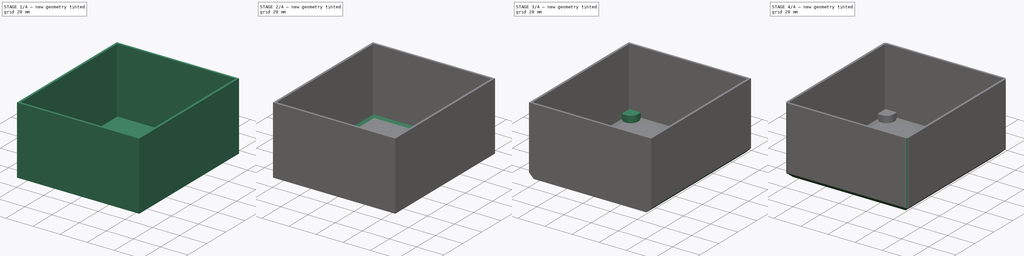
[diagram: build sequence overview — one tinted view per stage of 4, left to right]
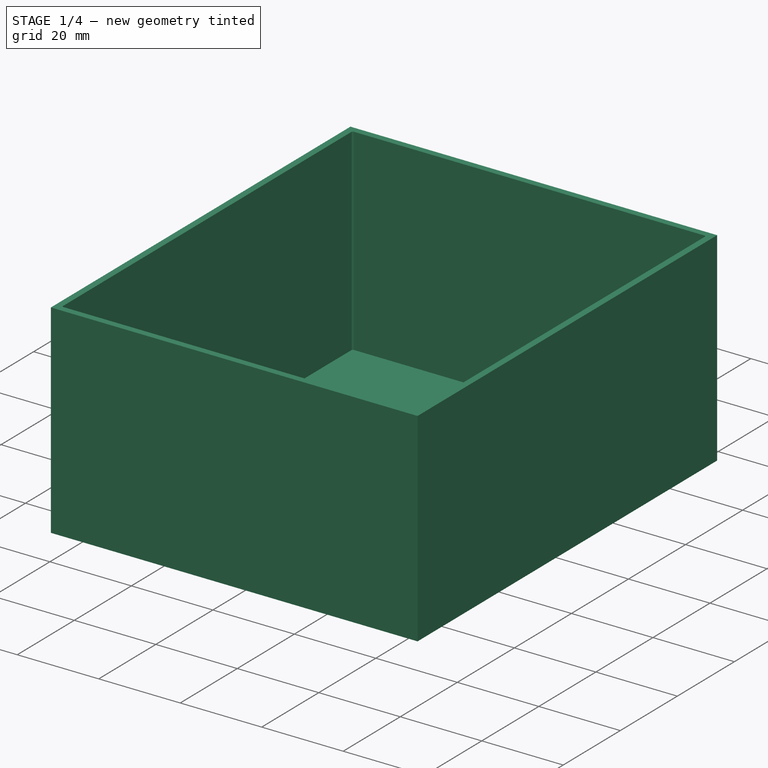
[diagram: stage 1 of 4 — iso view after this stage's code; geometry added in this stage tinted green]
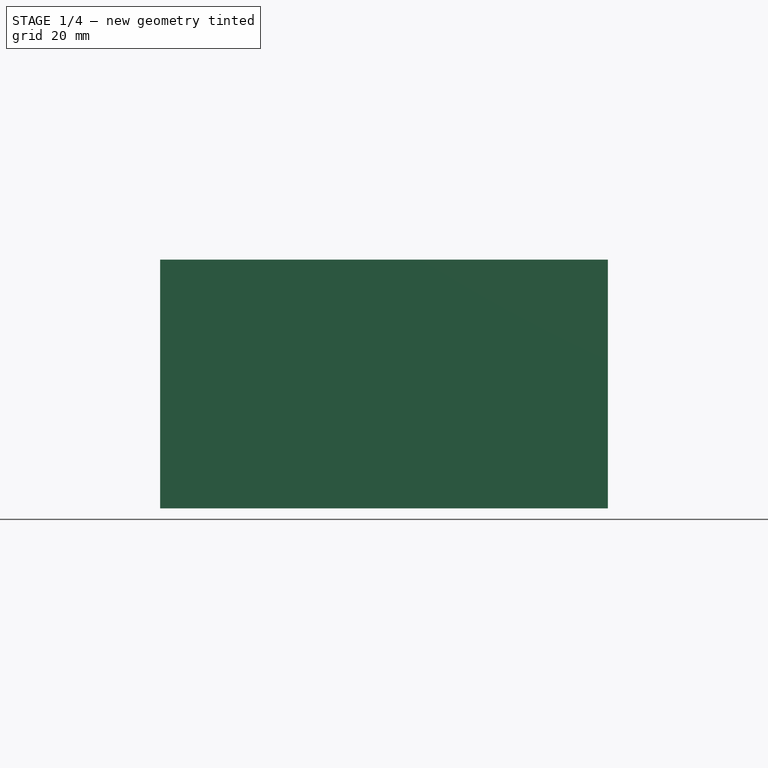
[diagram: stage 1 of 4 — front view after this stage's code; geometry added in this stage tinted green]
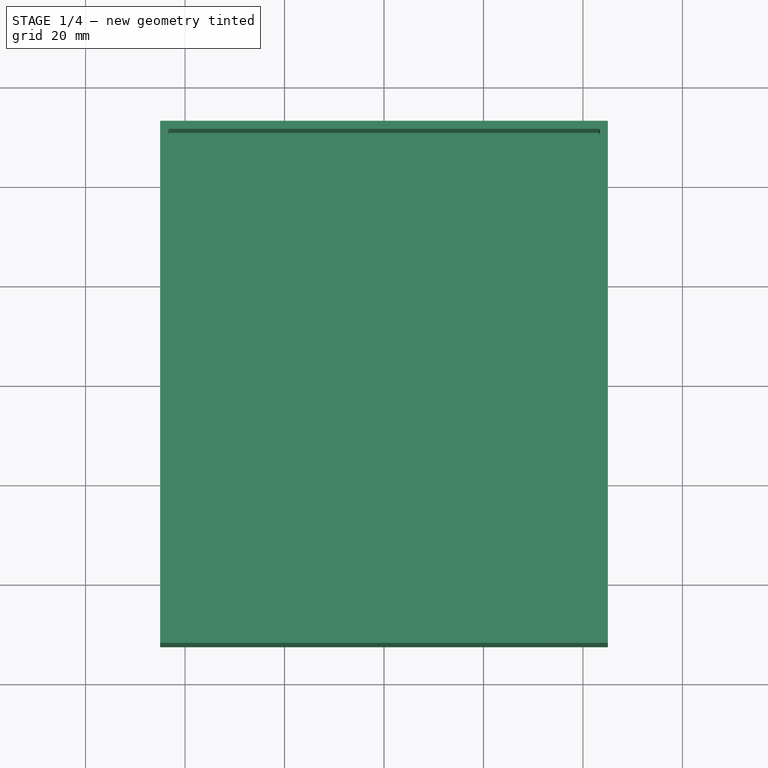
[diagram: stage 1 of 4 — top view after this stage's code; geometry added in this stage tinted green]
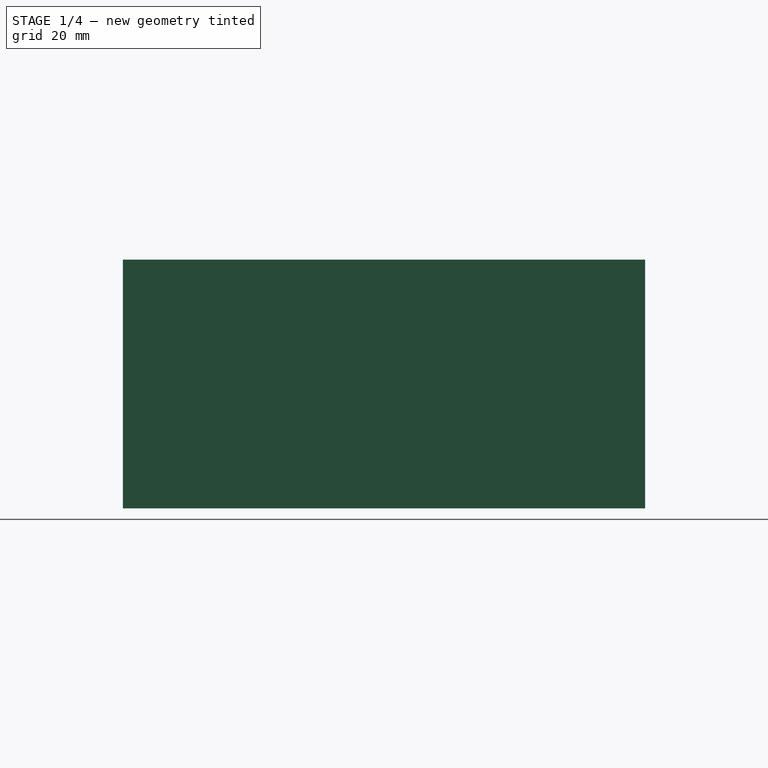
[diagram: stage 1 of 4 — right view after this stage's code; geometry added in this stage tinted green]
FCSTD DOCUMENT  (FreeCAD 0.21R33771 (Git))
Label: parametric_tray
License: All rights reserved
LicenseURL: http://en.wikipedia.org/wiki/All_rights_reserved
objects: Sketcher::SketchObject×9, PartDesign::Pocket×5, PartDesign::Pad×4, PartDesign::Plane×3, Spreadsheet::Sheet×1, PartDesign::Body×1
note: 31 computed .brp shape members not serialized (recipe doc carries the construction recipe); baked Part::Feature solids carry a one-line shape summary decoded from their .brp

FEATURE [Spreadsheet::Sheet] Spreadsheet  label="settings"
  cells = A1='Tray outer dimensions; C1='Fillets; E1='Chamfer stuff; G1='Hole stuff; A2='Tray width; B2(tray_body_width)=90; C2='outer fillet; D2(tray_outer_fillet)=2; E2='bottom chamfer; F2(bottom_chamfer)=5; G2='Hole diameter; H2(hole_diameter)=2; A3='Tray Depth; B3(tray_body_depth)=105; G3='Hole spacing; H3(hole_spacing)=5; A4='Tray height; B4(tray_body_height)=50; G4='Hole depth; H4(hole_depth)=5; A5='Tray wall thickness; B5(tray_wall_thickness)=1.6; A8='Calculations; A9='Tray inner width; B9(tray_pocket_width)==tray_body_width - tray_wall_thickness * 2; C9='inner fillet; D9(inner_fillet)==abs(tray_wall_thickness - tray_outer_fillet); E9='inner chamfer; F9(pocket_bottom_chamfer)==bottom_chamfer + tray_wall_thickness; G9='Hole width space; H9(hole_width_spacing)==tray_body_width - hole_spacing * 2; A10='Tray inner depth; B10(tray_pocket_depth)==tray_body_depth - tray_wall_thickness * 2; G10='hole depth space; H10(hole_depth_spacing)==tray_body_depth - hole_spacing * 2; A11='tray inner height; B11(tray_pocket_height)==tray_body_height - tray_wall_thickness; G11='hole post height; H11(hole_post_height)==hole_depth + tray_wall_thickness; A13='Front plane Z; B13(front_plane_z)==tray_body_depth / 2; A14='Right plane Z; B14(right_plane_z)==tray_body_width / 2; A15='Top plane Z; B15(top_plane_z)==tray_body_height
FEATURE [PartDesign::Plane] DatumPlane  label="tray_front"
  AttachmentOffset = pos=(0,0,52.5) rot=(0,0,1;0rad)
  Length = 106.432
  MapMode = 5
  Placement = pos=(0,-52.5,-1.17e-14) rot=(1,0,0;1.5708rad)
  ResizeMode = 0
  Support = -> [XZ_Plane]
  Width = 91.4317
  expr: .AttachmentOffset.Base.z = Spreadsheet.front_plane_z
FEATURE [PartDesign::Plane] DatumPlane001  label="tray_right"
  AttachmentOffset = pos=(0,0,45) rot=(0,0,1;0rad)
  Length = 122.748
  MapMode = 5
  Placement = pos=(45,-1e-14,1e-14) rot=(0.57735,0.57735,0.57735;2.0944rad)
  ResizeMode = 0
  Support = -> [YZ_Plane]
  Width = 92.7482
  expr: .AttachmentOffset.Base.z = Spreadsheet.right_plane_z
FEATURE [PartDesign::Plane] DatumPlane002  label="tray_top"
  AttachmentOffset = pos=(0,0,50) rot=(0,0,1;0rad)
  Length = 109.442
  MapMode = 5
  Placement = pos=(0,0,50) rot=(0,0,1;0rad)
  ResizeMode = 0
  Support = -> [XY_Plane]
  Width = 124.442
  expr: .AttachmentOffset.Base.z = Spreadsheet.tray_body_height
FEATURE [Sketcher::SketchObject] Sketch
  FullyConstrained = true
  MapMode = 5
  Support = -> [XY_Plane]
  expr: Constraints[10] = Spreadsheet.tray_body_depth
  expr: Constraints[9] = Spreadsheet.tray_body_width
  sketch-geometry (4):
    g0: LineSegment StartX=-45 StartY=52.5 StartZ=0 EndX=45 EndY=52.5 EndZ=0
    g1: LineSegment StartX=45 StartY=52.5 StartZ=0 EndX=45 EndY=-52.5 EndZ=0
    g2: LineSegment StartX=45 StartY=-52.5 StartZ=0 EndX=-45 EndY=-52.5 EndZ=0
    g3: LineSegment StartX=-45 StartY=-52.5 StartZ=0 EndX=-45 EndY=52.5 EndZ=0
  constraints (11):
    c: Coincident(g0,g1)
    c: Coincident(g1,g2)
    c: Coincident(g2,g3)
    c: Coincident(g3,g0)
    c: Horizontal(g0)
    c: Horizontal(g2)
    c: Vertical(g1)
    c: Vertical(g3)
    c: Symmetric(g0,g2,g-1)
    c: Distance(g0) = 90
    c: Distance(g3) = 105
FEATURE [PartDesign::Pad] Pad  label="tray_body"
  Direction = (0,0,1)
  Length = 50
  Length2 = 10
  Profile = -> Sketch
  ReferenceAxis = -> Sketch [N_Axis]
  Type = 0
  expr: Length = Spreadsheet.tray_body_height
FEATURE [Sketcher::SketchObject] Sketch001
  FullyConstrained = true
  MapMode = 5
  Placement = pos=(0,0,50) rot=(0,0,1;0rad)
  Support = -> [DatumPlane002]
  expr: Constraints[10] = <<settings>>.tray_pocket_width
  expr: Constraints[23] = <<settings>>.inner_fillet
  expr: Constraints[24] = <<settings>>.inner_fillet
  expr: Constraints[9] = <<settings>>.tray_pocket_depth
  sketch-geometry (12):
    g0: LineSegment StartX=-43.4 StartY=50.9 StartZ=0 EndX=43.4 EndY=50.9 EndZ=0
    g1: LineSegment StartX=43.4 StartY=50.9 StartZ=0 EndX=43.4 EndY=-50.9 EndZ=0
    g2: LineSegment StartX=43.4 StartY=-50.9 StartZ=0 EndX=-43.4 EndY=-50.9 EndZ=0
    g3: LineSegment StartX=-43.4 StartY=-50.9 StartZ=0 EndX=-43.4 EndY=50.9 EndZ=0
    g4: LineSegment StartX=-43 StartY=50.9 StartZ=0 EndX=43 EndY=50.9 EndZ=0
    g5: LineSegment StartX=43.4 StartY=50.5 StartZ=0 EndX=43.4 EndY=-50.5 EndZ=0
    g6: LineSegment StartX=43 StartY=-50.9 StartZ=0 EndX=-43 EndY=-50.9 EndZ=0
    g7: LineSegment StartX=-43.4 StartY=-50.5 StartZ=0 EndX=-43.4 EndY=50.5 EndZ=0
    g8: ArcOfCircle CenterX=-43 CenterY=-50.5 CenterZ=0 NormalX=0 NormalY=0 NormalZ=1 AngleXU=0 Radius=0.4 StartAngle=3.14159 EndAngle=4.71239
    g9: ArcOfCircle CenterX=43 CenterY=-50.5 CenterZ=0 NormalX=0 NormalY=0 NormalZ=1 AngleXU=0 Radius=0.4 StartAngle=4.71239 EndAngle=6.28319
    g10: ArcOfCircle CenterX=43 CenterY=50.5 CenterZ=0 NormalX=0 NormalY=0 NormalZ=1 AngleXU=0 Radius=0.4 StartAngle=0 EndAngle=1.5708
    g11: ArcOfCircle CenterX=-43 CenterY=50.5 CenterZ=0 NormalX=0 NormalY=0 NormalZ=1 AngleXU=0 Radius=0.4 StartAngle=1.5708 EndAngle=3.14159
  constraints (39):
    c: Coincident(g0,g1)
    c: Coincident(g1,g2)
    c: Coincident(g2,g3)
    c: Coincident(g3,g0)
    c: Horizontal(g0)
    c: Horizontal(g2)
    c: Vertical(g1)
    c: Vertical(g3)
    c: Symmetric(g0,g2,g-1)
    c: Distance(g1) = 101.8
    c: Distance(g0) = 86.8
    c: Horizontal(g11,g11)
    c: Horizontal(g11,g10)
    c: Horizontal(g10,g10)
    c: Vertical(g11,g11)
    c: Vertical(g11,g8)
    c: Vertical(g8,g8)
    c: Horizontal(g8,g8)
    c: Horizontal(g8,g9)
    c: Horizontal(g9,g9)
    c: Vertical(g9,g9)
    c: Vertical(g9,g10)
    c: Vertical(g10,g10)
    c: Distance(g8,g8) = 0.4
    c: Distance(g10,g10) = 0.4
    c: PointOnObject(g8,g3)
    c: PointOnObject(g8,g2)
    c: PointOnObject(g10,g0)
    c: PointOnObject(g10,g1)
    c: PointOnObject(g9,g1)
    c: PointOnObject(g11,g3)
    c: Coincident(g11,g4)
    c: Coincident(g4,g10)
    c: Coincident(g10,g5)
    c: Coincident(g5,g9)
    c: Coincident(g9,g6)
    c: Coincident(g6,g8)
    c: Coincident(g7,g8)
    c: Coincident(g7,g11)
FEATURE [PartDesign::Pocket] Pocket  label="tray_pocket"
  BaseFeature = -> Pad
  Direction = (0,0,-1)
  Length = 48.4
  Length2 = 5
  Profile = -> Sketch001
  ReferenceAxis = -> Sketch001 [N_Axis]
  Type = 0
  expr: Length = <<settings>>.tray_pocket_height
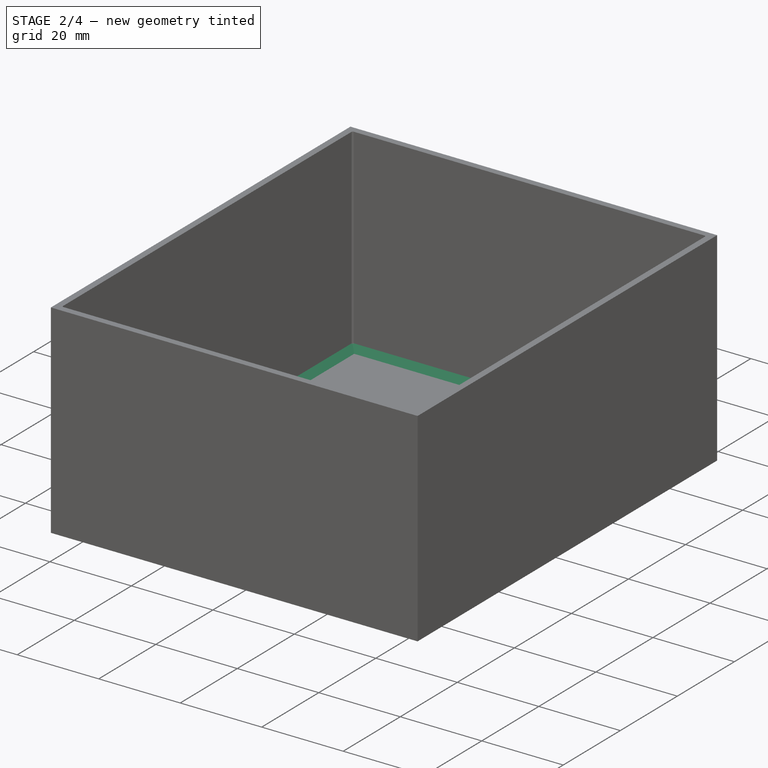
[diagram: stage 2 of 4 — iso view after this stage's code; geometry added in this stage tinted green]
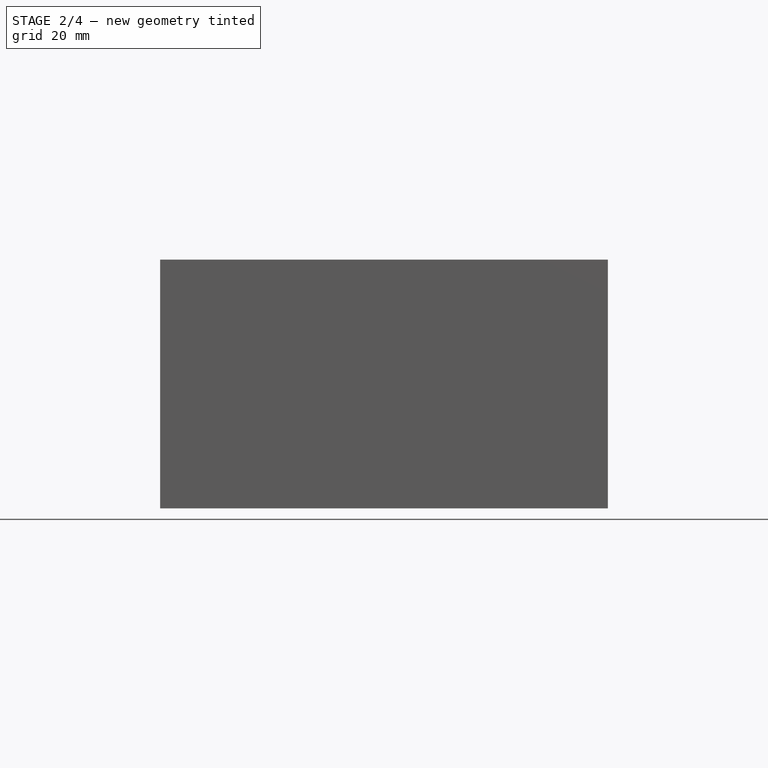
[diagram: stage 2 of 4 — front view after this stage's code; geometry added in this stage tinted green]
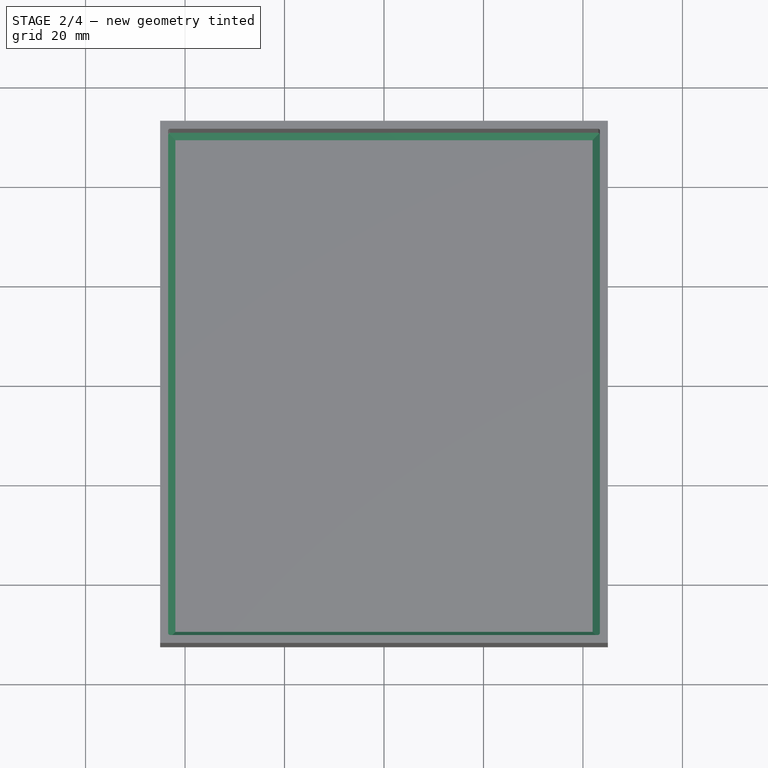
[diagram: stage 2 of 4 — top view after this stage's code; geometry added in this stage tinted green]
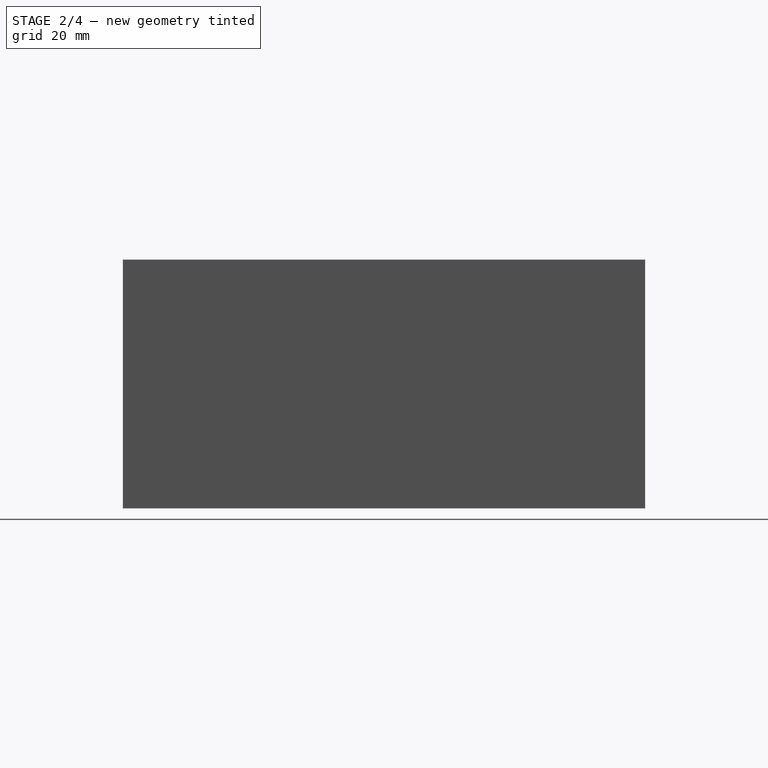
[diagram: stage 2 of 4 — right view after this stage's code; geometry added in this stage tinted green]
FEATURE [Sketcher::SketchObject] Sketch002
  FullyConstrained = true
  MapMode = 5
  Placement = pos=(0,-52.5,-1.17e-14) rot=(1,0,0;1.5708rad)
  Support = -> [DatumPlane]
  expr: Constraints[17] = <<settings>>.pocket_bottom_chamfer
  expr: Constraints[9] = <<settings>>.tray_body_width
  sketch-geometry (10):
    g0: LineSegment StartX=-45 StartY=4.6669 StartZ=0 EndX=45 EndY=4.6669 EndZ=0
    g1: LineSegment StartX=45 StartY=4.6669 StartZ=0 EndX=45 EndY=0 EndZ=0
    g2: LineSegment StartX=45 StartY=0 StartZ=0 EndX=-45 EndY=0 EndZ=0
    g3: LineSegment StartX=-45 StartY=0 StartZ=0 EndX=-45 EndY=4.6669 EndZ=0
    g4: LineSegment StartX=-45 StartY=4.6669 StartZ=0 EndX=-40.3331 EndY=0 EndZ=0
    g5: LineSegment StartX=-40.3331 StartY=0 StartZ=0 EndX=-45 EndY=0 EndZ=0
    g6: LineSegment StartX=-45 StartY=4.6669 StartZ=0 EndX=-45 EndY=0 EndZ=0
    g7: LineSegment StartX=40.3331 StartY=0 StartZ=0 EndX=45 EndY=0 EndZ=0
    g8: LineSegment StartX=45 StartY=0 StartZ=0 EndX=45 EndY=4.6669 EndZ=0
    g9: LineSegment StartX=45 StartY=4.6669 StartZ=0 EndX=40.3331 EndY=0 EndZ=0
  constraints (25):
    c: Coincident(g0,g1)
    c: Coincident(g1,g2)
    c: Coincident(g2,g3)
    c: Coincident(g3,g0)
    c: Horizontal(g0)
    c: Horizontal(g2)
    c: Symmetric(g2,g1,g-1)
    c: Angle(g2,g3) = 1.5708
    c: Angle(g1,g2) = 1.5708
    c: Distance(g2) = 90
    c: Coincident(g6,g2)
    c: Coincident(g5,g6)
    c: Coincident(g6,g0)
    c: PointOnObject(g5,g2)
    c: Coincident(g4,g5)
    c: Coincident(g4,g6)
    c: Equal(g9,g4)
    c: Distance(g4) = 6.6
    c: Coincident(g7,g1)
    c: Coincident(g8,g7)
    c: Coincident(g8,g0)
    c: PointOnObject(g7,g2)
    c: Coincident(g9,g8)
    c: Coincident(g9,g7)
    c: Equal(g7,g8)
FEATURE [PartDesign::Pad] Pad001  label="front_bottom_chamfer_body"
  BaseFeature = -> Pocket
  Direction = (0,-1,-2e-16)
  Length = 105
  Length2 = 10
  Profile = -> Sketch002
  ReferenceAxis = -> Sketch002 [N_Axis]
  Reversed = true
  Type = 0
  expr: Length = <<settings>>.tray_body_depth
FEATURE [Sketcher::SketchObject] Sketch003
  FullyConstrained = true
  MapMode = 5
  Placement = pos=(45,-1e-14,1e-14) rot=(0.57735,0.57735,0.57735;2.0944rad)
  Support = -> [DatumPlane001]
  expr: Constraints[23] = <<settings>>.pocket_bottom_chamfer
  expr: Constraints[7] = <<settings>>.tray_body_depth
  sketch-geometry (10):
    g0: LineSegment StartX=-52.5 StartY=4.6669 StartZ=0 EndX=52.5 EndY=4.6669 EndZ=0
    g1: LineSegment StartX=52.5 StartY=4.6669 StartZ=0 EndX=52.5 EndY=0 EndZ=0
    g2: LineSegment StartX=52.5 StartY=0 StartZ=0 EndX=-52.5 EndY=0 EndZ=0
    g3: LineSegment StartX=-52.5 StartY=0 StartZ=0 EndX=-52.5 EndY=4.6669 EndZ=0
    g4: LineSegment StartX=-52.5 StartY=4.6669 StartZ=0 EndX=-52.5 EndY=0 EndZ=0
    g5: LineSegment StartX=-52.5 StartY=0 StartZ=0 EndX=-47.8331 EndY=0 EndZ=0
    g6: LineSegment StartX=-47.8331 StartY=0 StartZ=0 EndX=-52.5 EndY=4.6669 EndZ=0
    g7: LineSegment StartX=47.8331 StartY=0 StartZ=0 EndX=52.5 EndY=0 EndZ=0
    g8: LineSegment StartX=52.5 StartY=0 StartZ=0 EndX=52.5 EndY=4.6669 EndZ=0
    g9: LineSegment StartX=52.5 StartY=4.6669 StartZ=0 EndX=47.8331 EndY=0 EndZ=0
  constraints (25):
    c: Coincident(g0,g1)
    c: Coincident(g1,g2)
    c: Coincident(g2,g3)
    c: Coincident(g3,g0)
    c: Horizontal(g0)
    c: Horizontal(g2)
    c: Symmetric(g1,g2,g-1)
    c: Distance(g2) = 105
    c: Coincident(g5,g2)
    c: Coincident(g4,g5)
    c: Angle(g2,g3) = 1.5708
    c: Angle(g1,g2) = 1.5708
    c: Coincident(g4,g0)
    c: Coincident(g6,g5)
    c: Coincident(g6,g4)
    c: Coincident(g7,g1)
    c: Coincident(g8,g7)
    c: Coincident(g8,g0)
    c: Coincident(g8,g9)
    c: Coincident(g9,g7)
    c: Equal(g5,g4)
    c: Equal(g6,g9)
    c: PointOnObject(g7,g2)
    c: Distance(g6) = 6.6
    c: PointOnObject(g5,g2)
FEATURE [PartDesign::Pad] Pad002  label="right_bottom_chamfer_body"
  BaseFeature = -> Pad001
  Direction = (1,-1e-16,1e-16)
  Length = 90
  Length2 = 10
  Profile = -> Sketch003
  ReferenceAxis = -> Sketch003 [N_Axis]
  Reversed = true
  Type = 0
  expr: Length = <<settings>>.tray_body_width
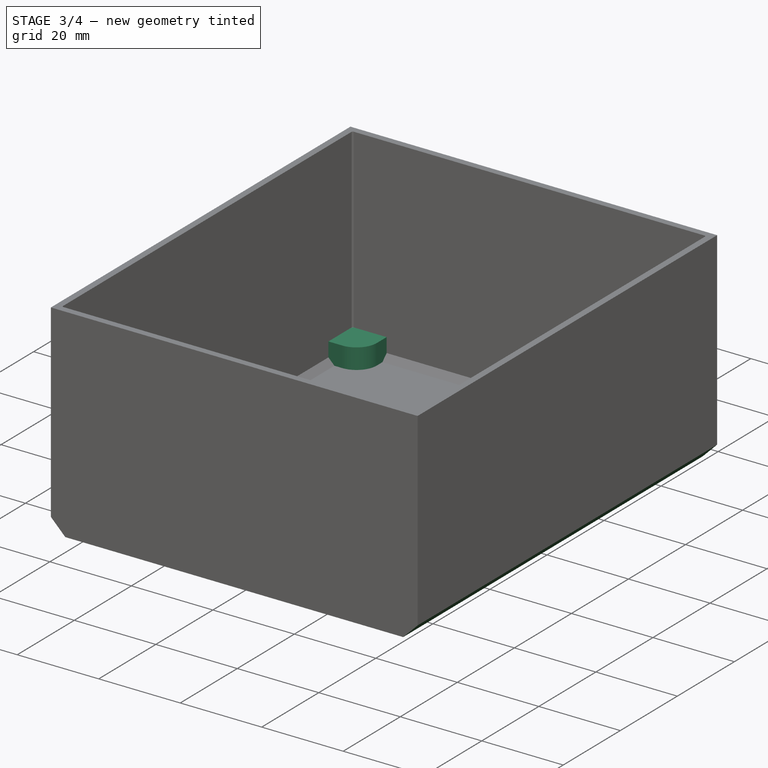
[diagram: stage 3 of 4 — iso view after this stage's code; geometry added in this stage tinted green]
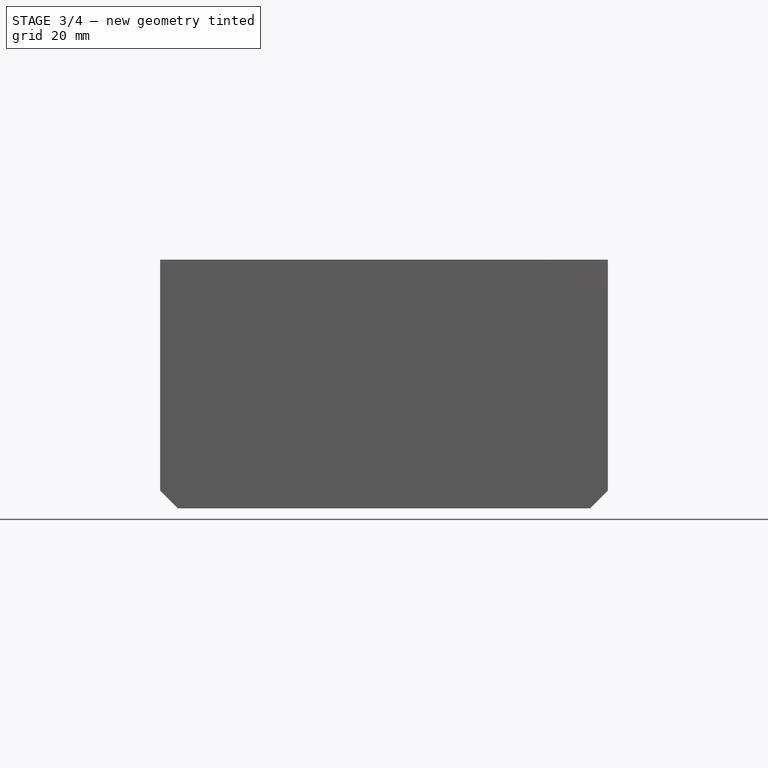
[diagram: stage 3 of 4 — front view after this stage's code; geometry added in this stage tinted green]
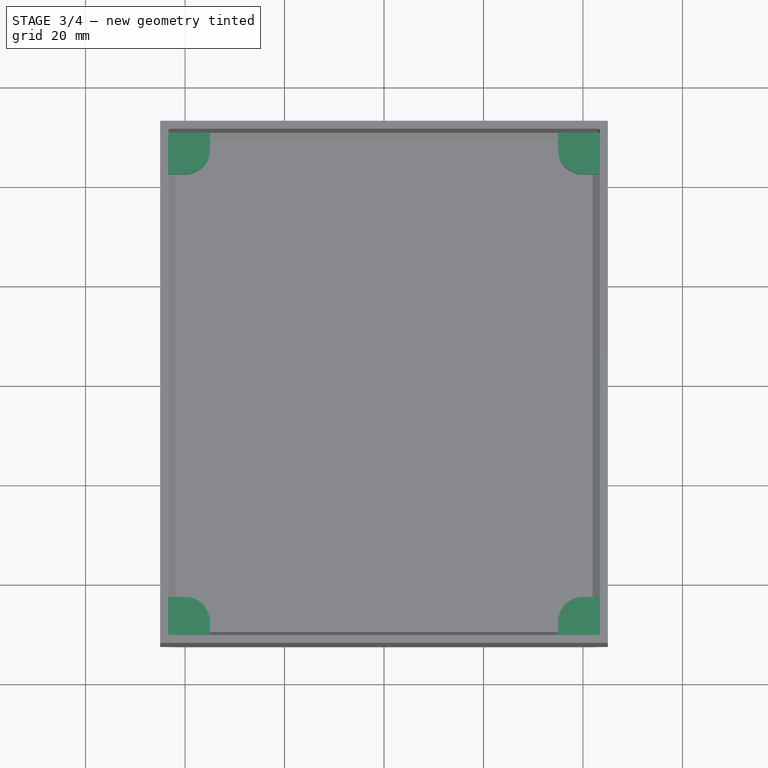
[diagram: stage 3 of 4 — top view after this stage's code; geometry added in this stage tinted green]
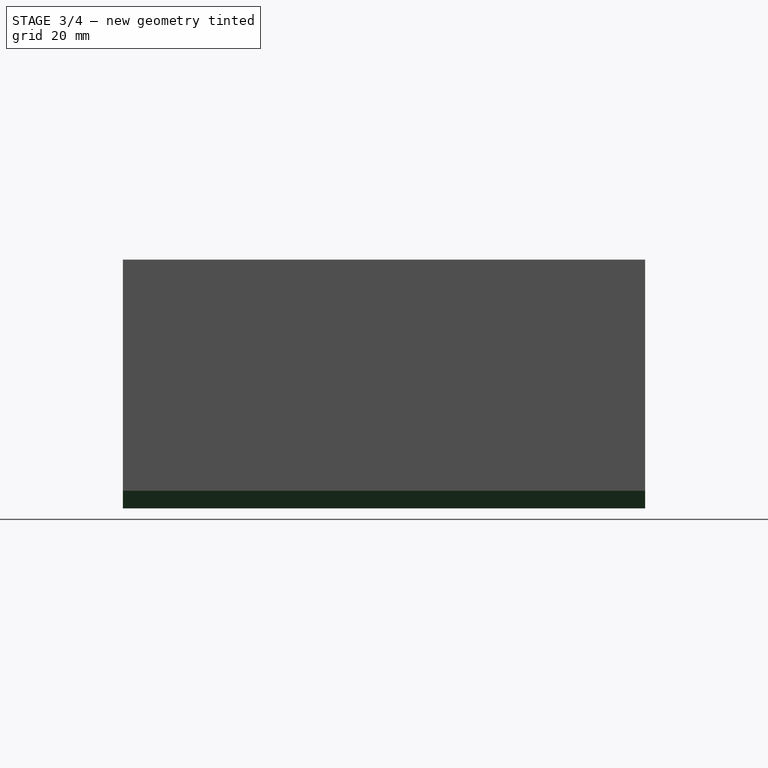
[diagram: stage 3 of 4 — right view after this stage's code; geometry added in this stage tinted green]
FEATURE [Sketcher::SketchObject] Sketch004
  FullyConstrained = true
  MapMode = 5
  Placement = pos=(0,-52.5,-1.17e-14) rot=(1,0,0;1.5708rad)
  Support = -> [DatumPlane]
  expr: Constraints[24] = <<settings>>.bottom_chamfer
  expr: Constraints[9] = <<settings>>.tray_body_width
  sketch-geometry (10):
    g0: LineSegment StartX=-45 StartY=3.53553 StartZ=0 EndX=45 EndY=3.53553 EndZ=0
    g1: LineSegment StartX=45 StartY=3.53553 StartZ=0 EndX=45 EndY=0 EndZ=0
    g2: LineSegment StartX=45 StartY=0 StartZ=0 EndX=-45 EndY=0 EndZ=0
    g3: LineSegment StartX=-45 StartY=0 StartZ=0 EndX=-45 EndY=3.53553 EndZ=0
    g4: LineSegment StartX=-45 StartY=0 StartZ=0 EndX=-45 EndY=3.53553 EndZ=0
    g5: LineSegment StartX=-45 StartY=0 StartZ=0 EndX=-41.4645 EndY=0 EndZ=0
    g6: LineSegment StartX=-45 StartY=3.53553 StartZ=0 EndX=-41.4645 EndY=0 EndZ=0
    g7: LineSegment StartX=41.4645 StartY=0 StartZ=0 EndX=45 EndY=0 EndZ=0
    g8: LineSegment StartX=45 StartY=0 StartZ=0 EndX=45 EndY=3.53553 EndZ=0
    g9: LineSegment StartX=45 StartY=3.53553 StartZ=0 EndX=41.4645 EndY=0 EndZ=0
  constraints (25):
    c: Coincident(g0,g1)
    c: Coincident(g1,g2)
    c: Coincident(g2,g3)
    c: Coincident(g3,g0)
    c: Horizontal(g0)
    c: Horizontal(g2)
    c: Symmetric(g1,g2,g-1)
    c: Angle(g2,g3) = 1.5708
    c: Angle(g1,g2) = 1.5708
    c: Distance(g2) = 90
    c: Coincident(g5,g2)
    c: Coincident(g4,g5)
    c: Coincident(g4,g0)
    c: Coincident(g6,g4)
    c: Coincident(g6,g5)
    c: PointOnObject(g5,g2)
    c: Equal(g4,g5)
    c: Equal(g6,g9)
    c: Coincident(g8,g1)
    c: Coincident(g7,g8)
    c: Coincident(g9,g7)
    c: PointOnObject(g7,g2)
    c: Coincident(g8,g0)
    c: Coincident(g9,g8)
    c: Distance(g6) = 5
FEATURE [Sketcher::SketchObject] Sketch005
  FullyConstrained = true
  MapMode = 5
  Placement = pos=(45,-1e-14,1e-14) rot=(0.57735,0.57735,0.57735;2.0944rad)
  Support = -> [DatumPlane001]
  expr: Constraints[23] = <<settings>>.bottom_chamfer
  expr: Constraints[9] = <<settings>>.tray_body_depth
  sketch-geometry (10):
    g0: LineSegment StartX=-52.5 StartY=3.53553 StartZ=0 EndX=52.5 EndY=3.53553 EndZ=0
    g1: LineSegment StartX=52.5 StartY=3.53553 StartZ=0 EndX=52.5 EndY=0 EndZ=0
    g2: LineSegment StartX=52.5 StartY=0 StartZ=0 EndX=-52.5 EndY=0 EndZ=0
    g3: LineSegment StartX=-52.5 StartY=0 StartZ=0 EndX=-52.5 EndY=3.53553 EndZ=0
    g4: LineSegment StartX=-52.5 StartY=0 StartZ=0 EndX=-52.5 EndY=3.53553 EndZ=0
    g5: LineSegment StartX=-52.5 StartY=3.53553 StartZ=0 EndX=-48.9645 EndY=0 EndZ=0
    g6: LineSegment StartX=-48.9645 StartY=0 StartZ=0 EndX=-52.5 EndY=0 EndZ=0
    g7: LineSegment StartX=48.9645 StartY=0 StartZ=0 EndX=52.5 EndY=0 EndZ=0
    g8: LineSegment StartX=52.5 StartY=0 StartZ=0 EndX=52.5 EndY=3.53553 EndZ=0
    g9: LineSegment StartX=52.5 StartY=3.53553 StartZ=0 EndX=48.9645 EndY=0 EndZ=0
  constraints (25):
    c: Coincident(g0,g1)
    c: Coincident(g1,g2)
    c: Coincident(g2,g3)
    c: Coincident(g3,g0)
    c: Horizontal(g0)
    c: Horizontal(g2)
    c: Angle(g1,g2) = 1.5708
    c: Angle(g2,g3) = 1.5708
    c: Symmetric(g2,g1,g-1)
    c: Distance(g2) = 105
    c: Coincident(g4,g2)
    c: Coincident(g6,g4)
    c: Coincident(g4,g0)
    c: PointOnObject(g6,g2)
    c: Coincident(g5,g6)
    c: Coincident(g5,g4)
    c: Equal(g4,g6)
    c: Equal(g5,g9)
    c: Coincident(g7,g1)
    c: Coincident(g8,g7)
    c: Coincident(g9,g7)
    c: Coincident(g8,g0)
    c: Coincident(g9,g8)
    c: Distance(g5) = 5
    c: PointOnObject(g7,g2)
FEATURE [Sketcher::SketchObject] Sketch006
  FullyConstrained = true
  MapMode = 5
  Placement = pos=(0,0,50) rot=(0,0,1;0rad)
  Support = -> [DatumPlane002]
  expr: Constraints[10] = <<settings>>.tray_body_depth
  expr: Constraints[25] = <<settings>>.tray_outer_fillet
  expr: Constraints[9] = <<settings>>.tray_body_width
  sketch-geometry (16):
    g0: LineSegment StartX=-45 StartY=52.5 StartZ=0 EndX=45 EndY=52.5 EndZ=0
    g1: LineSegment StartX=45 StartY=52.5 StartZ=0 EndX=45 EndY=-52.5 EndZ=0
    g2: LineSegment StartX=45 StartY=-52.5 StartZ=0 EndX=-45 EndY=-52.5 EndZ=0
    g3: LineSegment StartX=-45 StartY=-52.5 StartZ=0 EndX=-45 EndY=52.5 EndZ=0
    g4: ArcOfCircle CenterX=-43 CenterY=50.5 CenterZ=0 NormalX=0 NormalY=0 NormalZ=1 AngleXU=0 Radius=2 StartAngle=1.5708 EndAngle=3.14159
    g5: ArcOfCircle CenterX=43 CenterY=50.5 CenterZ=0 NormalX=0 NormalY=0 NormalZ=1 AngleXU=0 Radius=2 StartAngle=0 EndAngle=1.5708
    g6: ArcOfCircle CenterX=43 CenterY=-50.5 CenterZ=0 NormalX=0 NormalY=0 NormalZ=1 AngleXU=0 Radius=2 StartAngle=4.71239 EndAngle=6.28319
    g7: ArcOfCircle CenterX=-43 CenterY=-50.5 CenterZ=0 NormalX=0 NormalY=0 NormalZ=1 AngleXU=0 Radius=2 StartAngle=3.14159 EndAngle=4.71239
    g8: LineSegment StartX=-43 StartY=52.5 StartZ=0 EndX=-45 EndY=52.5 EndZ=0
    g9: LineSegment StartX=-45 StartY=52.5 StartZ=0 EndX=-45 EndY=50.5 EndZ=0
    g10: LineSegment StartX=-45 StartY=-50.5 StartZ=0 EndX=-45 EndY=-52.5 EndZ=0
    g11: LineSegment StartX=-45 StartY=-52.5 StartZ=0 EndX=-43 EndY=-52.5 EndZ=0
    g12: LineSegment StartX=43 StartY=-52.5 StartZ=0 EndX=45 EndY=-52.5 EndZ=0
    g13: LineSegment StartX=45 StartY=-52.5 StartZ=0 EndX=45 EndY=-50.5 EndZ=0
    g14: LineSegment StartX=45 StartY=50.5 StartZ=0 EndX=45 EndY=52.5 EndZ=0
    g15: LineSegment StartX=43 StartY=52.5 StartZ=0 EndX=45 EndY=52.5 EndZ=0
  constraints (47):
    c: Coincident(g0,g1)
    c: Coincident(g1,g2)
    c: Coincident(g2,g3)
    c: Coincident(g3,g0)
    c: Horizontal(g0)
    c: Horizontal(g2)
    c: Vertical(g1)
    c: Vertical(g3)
    c: Symmetric(g0,g2,g-1)
    c: Distance(g0) = 90
    c: Distance(g1) = 105
    c: Horizontal(g7,g7)
    c: Horizontal(g7,g6)
    c: Horizontal(g6,g6)
    c: Vertical(g7,g7)
    c: Vertical(g7,g4)
    c: Vertical(g4,g4)
    c: Horizontal(g4,g4)
    c: Horizontal(g4,g5)
    c: Horizontal(g5,g5)
    c: Vertical(g5,g5)
    c: Vertical(g5,g6)
    c: Vertical(g6,g6)
    c: PointOnObject(g4,g3)
    c: PointOnObject(g4,g0)
    c: Distance(g4,g4) = 2
    c: PointOnObject(g7,g2)
    c: PointOnObject(g7,g3)
    c: PointOnObject(g6,g1)
    c: PointOnObject(g6,g2)
    c: PointOnObject(g5,g0)
    c: Coincident(g9,g0)
    c: Coincident(g8,g9)
    c: Coincident(g8,g4)
    c: Coincident(g9,g4)
    c: Coincident(g10,g7)
    c: Coincident(g10,g2)
    c: Coincident(g11,g10)
    c: Coincident(g11,g7)
    c: Coincident(g12,g6)
    c: Coincident(g12,g1)
    c: Coincident(g13,g12)
    c: Coincident(g13,g6)
    c: Coincident(g14,g5)
    c: Coincident(g14,g0)
    c: Coincident(g15,g14)
    c: Coincident(g15,g5)
FEATURE [Sketcher::SketchObject] Sketch007
  FullyConstrained = true
  MapMode = 5
  Support = -> [XY_Plane]
  expr: Constraints[10] = <<settings>>.hole_width_spacing
  expr: Constraints[20] = <<settings>>.tray_body_depth
  expr: Constraints[21] = <<settings>>.tray_body_width
  expr: Constraints[39] = <<settings>>.hole_spacing
  expr: Constraints[9] = Spreadsheet.hole_depth_spacing
  sketch-geometry (28):
    g0: LineSegment StartX=-40 StartY=-47.5 StartZ=0 EndX=40 EndY=-47.5 EndZ=0
    g1: LineSegment StartX=40 StartY=-47.5 StartZ=0 EndX=40 EndY=47.5 EndZ=0
    g2: LineSegment StartX=40 StartY=47.5 StartZ=0 EndX=-40 EndY=47.5 EndZ=0
    g3: LineSegment StartX=-40 StartY=47.5 StartZ=0 EndX=-40 EndY=-47.5 EndZ=0
    g4: LineSegment StartX=-45 StartY=52.5 StartZ=0 EndX=45 EndY=52.5 EndZ=0
    g5: LineSegment StartX=45 StartY=52.5 StartZ=0 EndX=45 EndY=-52.5 EndZ=0
    g6: LineSegment StartX=45 StartY=-52.5 StartZ=0 EndX=-45 EndY=-52.5 EndZ=0
    g7: LineSegment StartX=-45 StartY=-52.5 StartZ=0 EndX=-45 EndY=52.5 EndZ=0
    g8: ArcOfCircle CenterX=-40 CenterY=47.5 CenterZ=0 NormalX=0 NormalY=0 NormalZ=1 AngleXU=0 Radius=5 StartAngle=4.71239 EndAngle=6.28319
    g9: ArcOfCircle CenterX=40 CenterY=47.5 CenterZ=0 NormalX=0 NormalY=0 NormalZ=1 AngleXU=0 Radius=5 StartAngle=3.14159 EndAngle=4.71239
    g10: ArcOfCircle CenterX=40 CenterY=-47.5 CenterZ=0 NormalX=0 NormalY=0 NormalZ=1 AngleXU=0 Radius=5 StartAngle=1.5708 EndAngle=3.14159
    g11: ArcOfCircle CenterX=-40 CenterY=-47.5 CenterZ=0 NormalX=0 NormalY=0 NormalZ=1 AngleXU=0 Radius=5 StartAngle=0 EndAngle=1.5708
    g12: LineSegment StartX=-40 StartY=-42.5 StartZ=0 EndX=-45 EndY=-42.5 EndZ=0
    g13: LineSegment StartX=-45 StartY=-42.5 StartZ=0 EndX=-45 EndY=-52.5 EndZ=0
    g14: LineSegment StartX=-45 StartY=-52.5 StartZ=0 EndX=-35 EndY=-52.5 EndZ=0
    g15: LineSegment StartX=-35 StartY=-47.5 StartZ=0 EndX=-35 EndY=-52.5 EndZ=0
    g16: LineSegment StartX=35 StartY=-47.5 StartZ=0 EndX=35 EndY=-52.5 EndZ=0
    g17: LineSegment StartX=45 StartY=-52.5 StartZ=0 EndX=35 EndY=-52.5 EndZ=0
    g18: LineSegment StartX=45 StartY=-42.5 StartZ=0 EndX=45 EndY=-52.5 EndZ=0
    g19: LineSegment StartX=45 StartY=-42.5 StartZ=0 EndX=40 EndY=-42.5 EndZ=0
    g20: LineSegment StartX=45 StartY=42.5 StartZ=0 EndX=40 EndY=42.5 EndZ=0
    g21: LineSegment StartX=45 StartY=52.5 StartZ=0 EndX=45 EndY=42.5 EndZ=0
    g22: LineSegment StartX=45 StartY=52.5 StartZ=0 EndX=35 EndY=52.5 EndZ=0
    g23: LineSegment StartX=35 StartY=52.5 StartZ=0 EndX=35 EndY=47.5 EndZ=0
    g24: LineSegment StartX=-35 StartY=52.5 StartZ=0 EndX=-35 EndY=47.5 EndZ=0
    g25: LineSegment StartX=-35 StartY=52.5 StartZ=0 EndX=-45 EndY=52.5 EndZ=0
    g26: LineSegment StartX=-45 StartY=52.5 StartZ=0 EndX=-45 EndY=42.5 EndZ=0
    g27: LineSegment StartX=-40 StartY=42.5 StartZ=0 EndX=-45 EndY=42.5 EndZ=0
  constraints (80):
    c: Coincident(g0,g1)
    c: Coincident(g1,g2)
    c: Coincident(g2,g3)
    c: Coincident(g3,g0)
    c: Horizontal(g0)
    c: Horizontal(g2)
    c: Vertical(g1)
    c: Vertical(g3)
    c: Symmetric(g0,g2,g-1)
    c: Distance(g1) = 95
    c: Distance(g2) = 80
    c: Coincident(g4,g5)
    c: Coincident(g5,g6)
    c: Coincident(g6,g7)
    c: Coincident(g7,g4)
    c: Horizontal(g4)
    c: Horizontal(g6)
    c: Vertical(g5)
    c: Vertical(g7)
    c: Symmetric(g5,g4,g-1)
    c: Distance(g5) = 105
    c: Distance(g4) = 90
    c: Vertical(g11,g11)
    c: Vertical(g11,g8)
    c: Vertical(g8,g8)
    c: Horizontal(g8,g8)
    c: Horizontal(g8,g9)
    c: Horizontal(g9,g9)
    c: Vertical(g9,g9)
    c: Vertical(g9,g10)
    c: Vertical(g10,g10)
    c: Horizontal(g10,g10)
    c: Horizontal(g10,g11)
    c: Horizontal(g11,g11)
    c: Coincident(g11,g0)
    c: Coincident(g9,g1)
    c: Equal(g11,g10)
    c: Equal(g11,g8)
    c: Equal(g11,g9)
    c: Radius(g11) = 5
    c: Coincident(g12,g11)
    c: Horizontal(g12)
    c: Vertical(g15)
    c: Coincident(g15,g11)
    c: PointOnObject(g15,g6)
    c: PointOnObject(g12,g7)
    c: Coincident(g13,g12)
    c: Coincident(g13,g6)
    c: Coincident(g14,g13)
    c: Coincident(g14,g15)
    c: Vertical(g16)
    c: Horizontal(g19)
    c: Horizontal(g20)
    c: Vertical(g23)
    c: Vertical(g24)
    c: Horizontal(g27)
    c: Coincident(g27,g8)
    c: PointOnObject(g27,g7)
    c: Coincident(g26,g27)
    c: Coincident(g26,g4)
    c: Coincident(g25,g26)
    c: Coincident(g24,g8)
    c: Coincident(g24,g25)
    c: PointOnObject(g24,g4)
    c: Coincident(g23,g9)
    c: PointOnObject(g23,g4)
    c: Coincident(g22,g23)
    c: Coincident(g22,g4)
    c: Coincident(g21,g22)
    c: PointOnObject(g21,g5)
    c: Coincident(g20,g9)
    c: Coincident(g20,g21)
    c: Coincident(g19,g10)
    c: Coincident(g16,g10)
    c: PointOnObject(g16,g6)
    c: Coincident(g17,g16)
    c: Coincident(g17,g5)
    c: Coincident(g18,g17)
    c: PointOnObject(g18,g5)
    c: Coincident(g19,g18)
FEATURE [PartDesign::Pad] Pad003  label="hole_posts"
  BaseFeature = -> Pad002
  Direction = (0,0,1)
  Length = 6.6
  Length2 = 10
  Profile = -> Sketch007
  ReferenceAxis = -> Sketch007 [N_Axis]
  Type = 0
  expr: Length = <<settings>>.hole_post_height
FEATURE [Sketcher::SketchObject] Sketch008
  FullyConstrained = true
  MapMode = 5
  Support = -> [XY_Plane]
  expr: Constraints[10] = <<settings>>.hole_width_spacing
  expr: Constraints[14] = <<settings>>.hole_diameter
  expr: Constraints[9] = <<settings>>.hole_depth_spacing
  sketch-geometry (8):
    g0: LineSegment StartX=-40 StartY=-47.5 StartZ=0 EndX=40 EndY=-47.5 EndZ=0
    g1: LineSegment StartX=40 StartY=-47.5 StartZ=0 EndX=40 EndY=47.5 EndZ=0
    g2: LineSegment StartX=40 StartY=47.5 StartZ=0 EndX=-40 EndY=47.5 EndZ=0
    g3: LineSegment StartX=-40 StartY=47.5 StartZ=0 EndX=-40 EndY=-47.5 EndZ=0
    g4: Circle CenterX=-40 CenterY=47.5 CenterZ=0 NormalX=0 NormalY=0 NormalZ=1 AngleXU=0 Radius=1
    g5: Circle CenterX=40 CenterY=47.5 CenterZ=0 NormalX=0 NormalY=0 NormalZ=1 AngleXU=0 Radius=1
    g6: Circle CenterX=40 CenterY=-47.5 CenterZ=0 NormalX=0 NormalY=0 NormalZ=1 AngleXU=0 Radius=1
    g7: Circle CenterX=-40 CenterY=-47.5 CenterZ=0 NormalX=0 NormalY=0 NormalZ=1 AngleXU=0 Radius=1
  constraints (19):
    c: Coincident(g0,g1)
    c: Coincident(g1,g2)
    c: Coincident(g2,g3)
    c: Coincident(g3,g0)
    c: Horizontal(g0)
    c: Horizontal(g2)
    c: Vertical(g1)
    c: Vertical(g3)
    c: Symmetric(g0,g2,g-1)
    c: Distance(g1) = 95
    c: Distance(g0) = 80
    c: Equal(g4,g7)
    c: Equal(g4,g6)
    c: Equal(g4,g5)
    c: Diameter(g4) = 2
    c: Coincident(g4,g2)
    c: Coincident(g7,g0)
    c: Coincident(g6,g0)
    c: Coincident(g5,g1)
FEATURE [PartDesign::Pocket] Pocket004  label="holes"
  BaseFeature = -> Pad003
  Direction = (0,0,-1)
  Length = 5
  Length2 = 5
  Profile = -> Sketch008
  ReferenceAxis = -> Sketch008 [N_Axis]
  Reversed = true
  Type = 0
  expr: Length = <<settings>>.hole_depth
FEATURE [PartDesign::Pocket] Pocket001  label="front_bottom_chamfer_pocket"
  BaseFeature = -> Pocket004
  Direction = (0,1,2e-16)
  Length = 5
  Length2 = 5
  Profile = -> Sketch004
  ReferenceAxis = -> Sketch004 [N_Axis]
  Type = 1
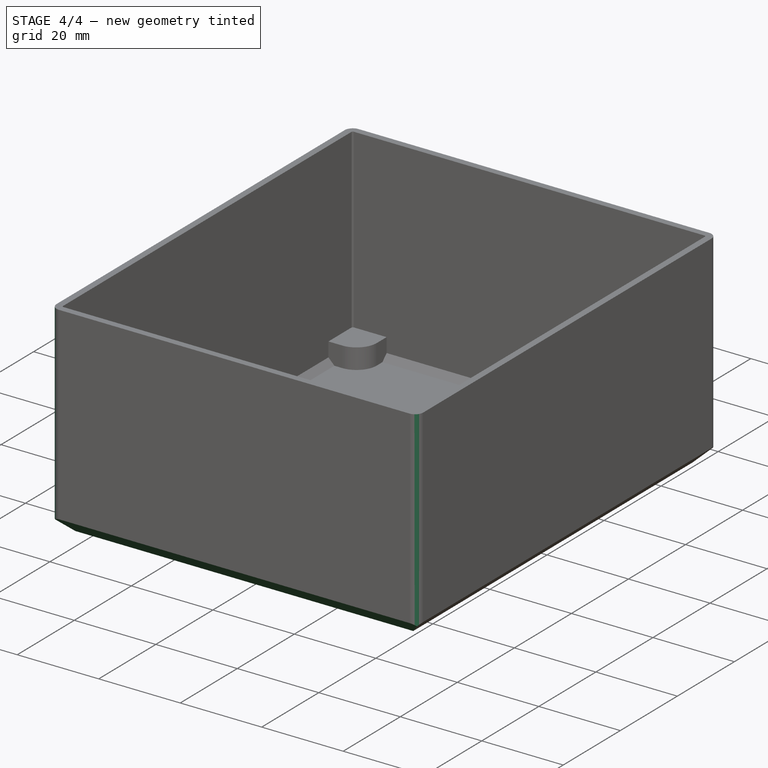
[diagram: stage 4 of 4 — iso view after this stage's code; geometry added in this stage tinted green]
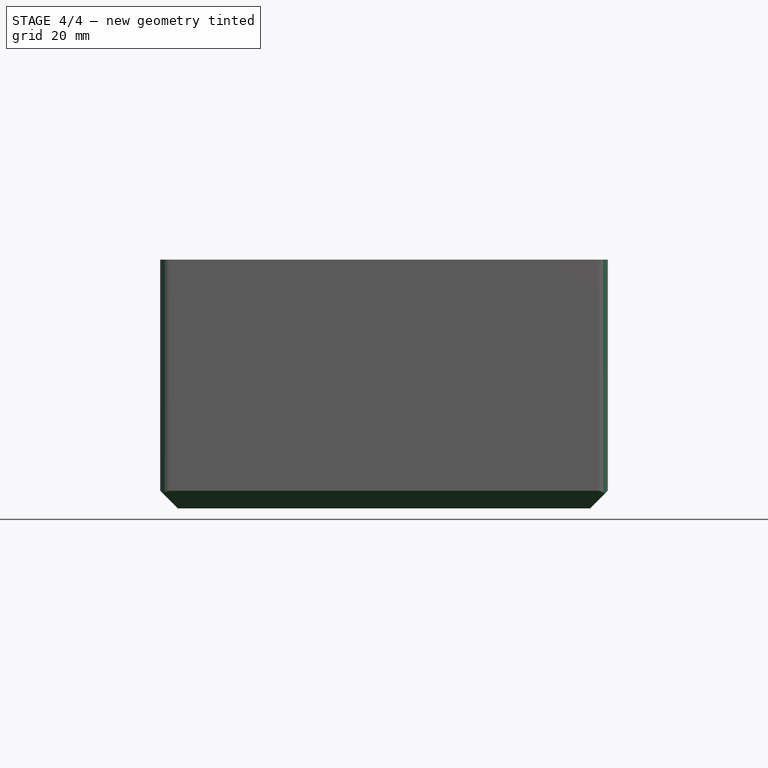
[diagram: stage 4 of 4 — front view after this stage's code; geometry added in this stage tinted green]
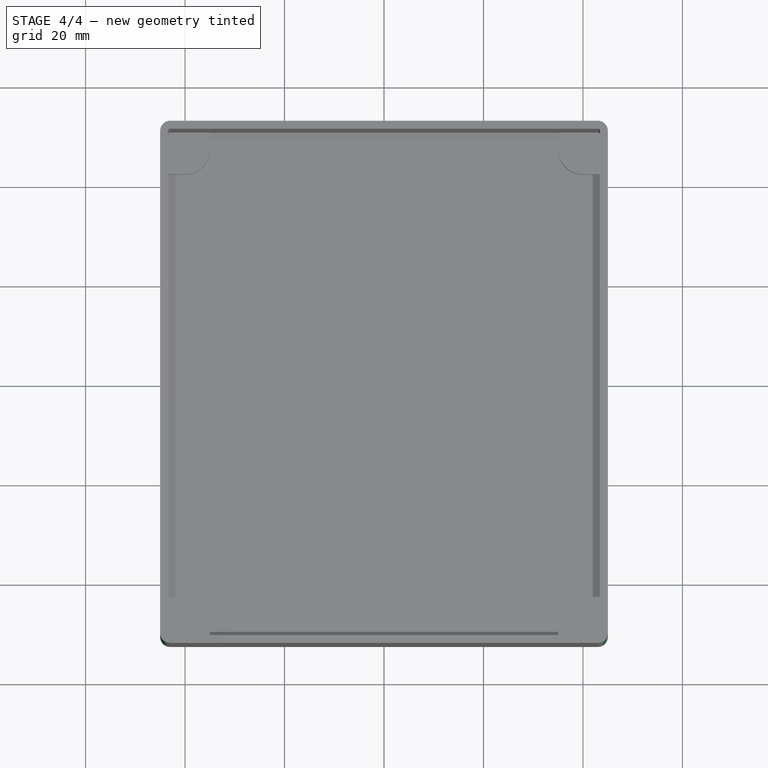
[diagram: stage 4 of 4 — top view after this stage's code; geometry added in this stage tinted green]
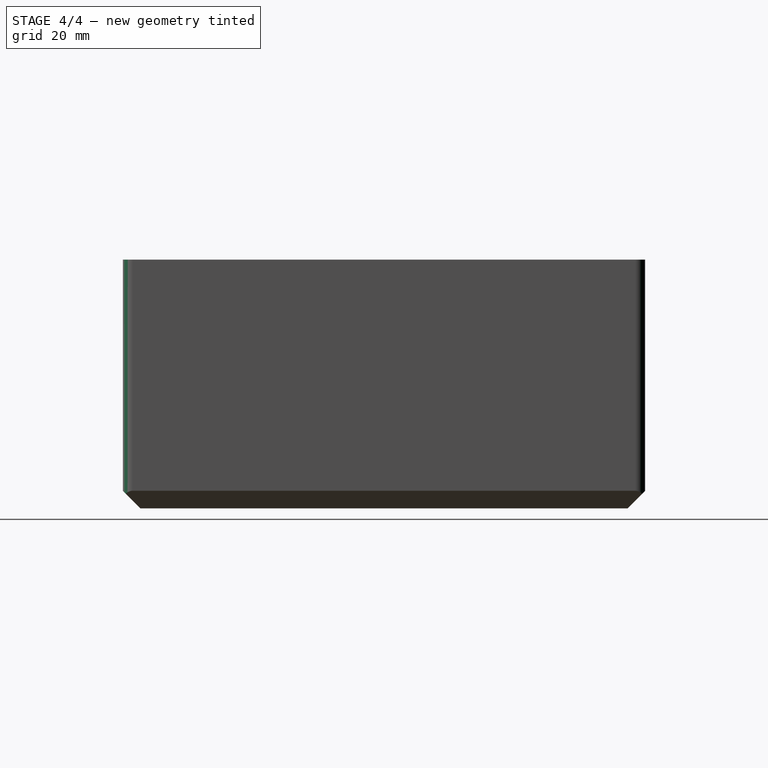
[diagram: stage 4 of 4 — right view after this stage's code; geometry added in this stage tinted green]
FEATURE [PartDesign::Pocket] Pocket002  label="right_bottom_chamfer_pocket"
  BaseFeature = -> Pocket001
  Direction = (-1,1e-16,-1e-16)
  Length = 5
  Length2 = 5
  Profile = -> Sketch005
  ReferenceAxis = -> Sketch005 [N_Axis]
  Type = 1
FEATURE [PartDesign::Pocket] Pocket003  label="outer_fillets"
  BaseFeature = -> Pocket002
  Direction = (0,0,-1)
  Length = 5
  Length2 = 5
  Profile = -> Sketch006
  ReferenceAxis = -> Sketch006 [N_Axis]
  Type = 1
FEATURE [PartDesign::Body] Body
  Group = -> [DatumPlane,DatumPlane001,DatumPlane002,Sketch,Pad,Sketch001,Pocket,Sketch002,Pad001,Sketch003,Pad002,Sketch004,Sketch007,Pad003,Sketch008,Pocket004,Pocket001,Sketch005,Pocket002,Sketch006,Pocket003]
  Origin = -> Origin
  Tip = -> Pocket003
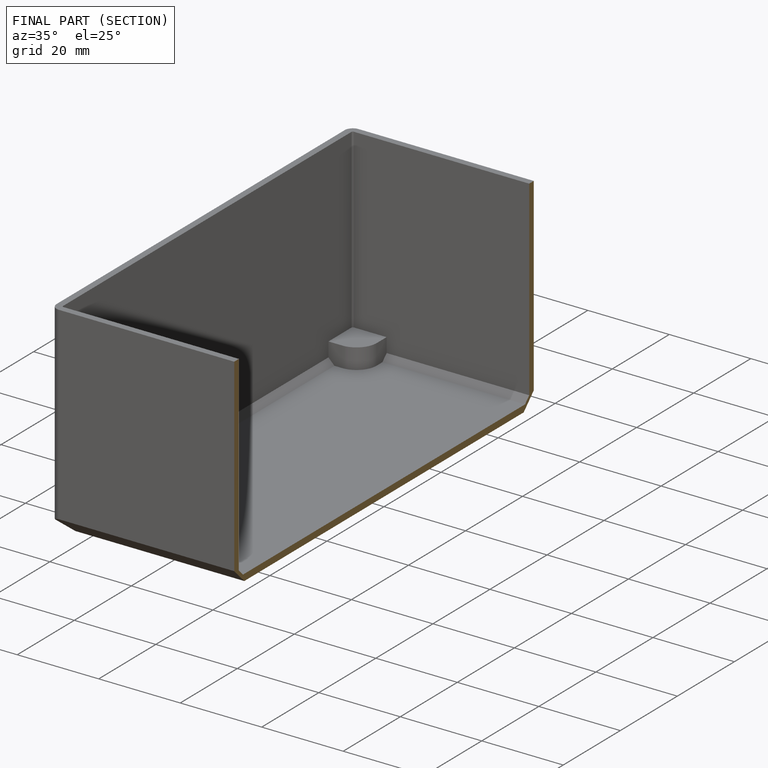
[diagram: finished part — half-section view (interior)]
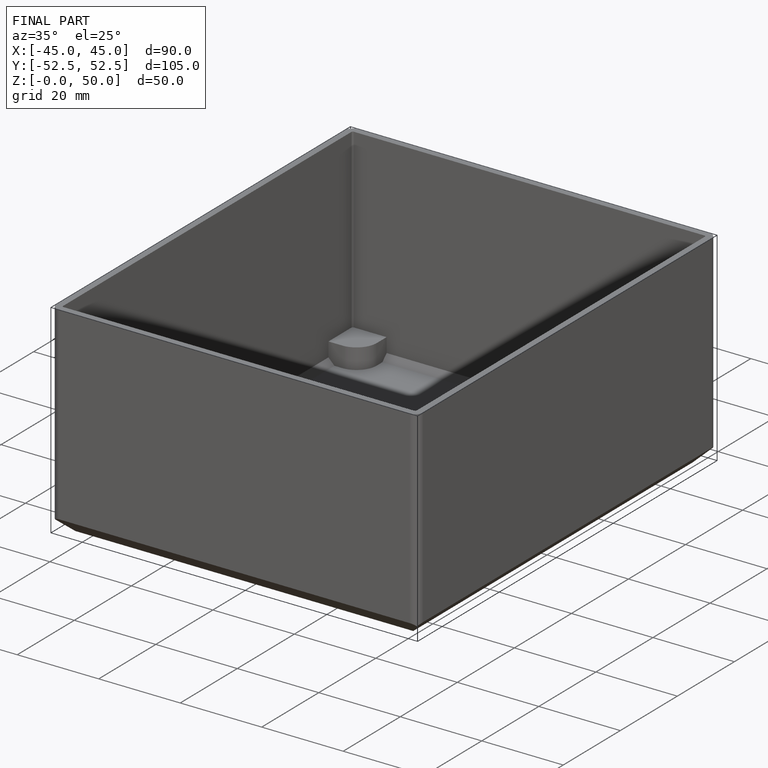
[diagram: finished part — iso view with bounding-box wireframe]
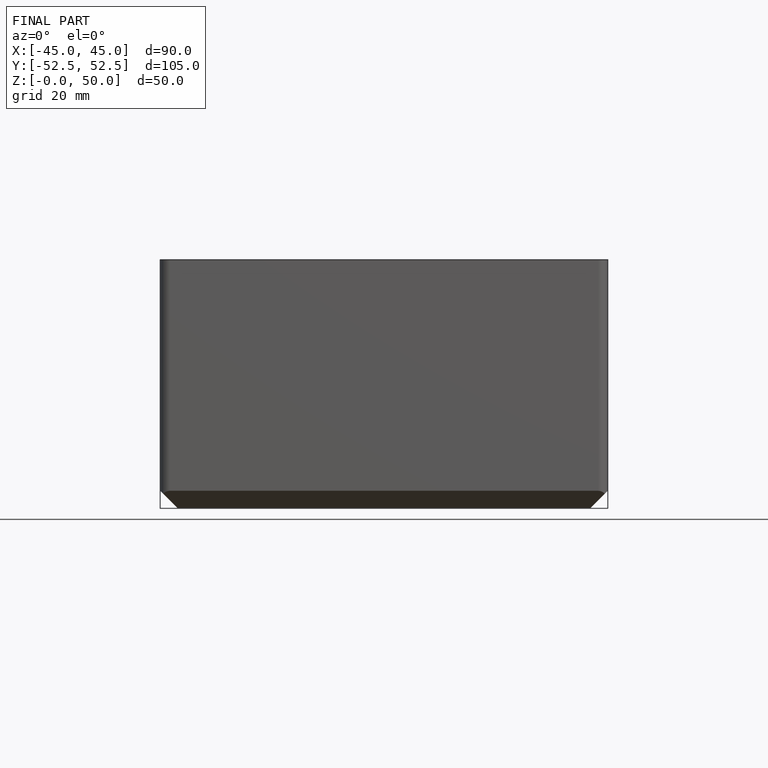
[diagram: finished part — front view with bounding-box wireframe]
